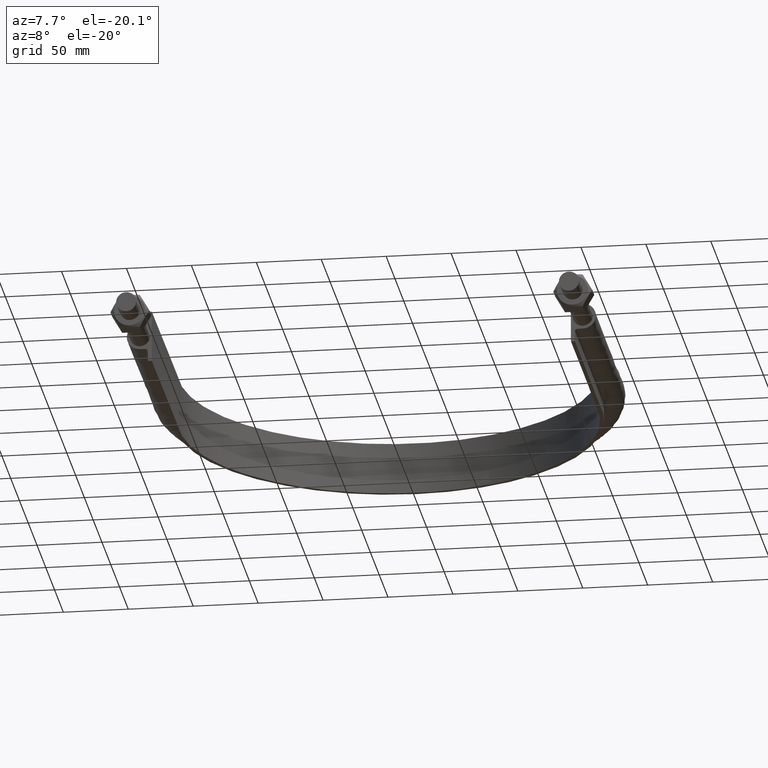
[diagram: clean part render]
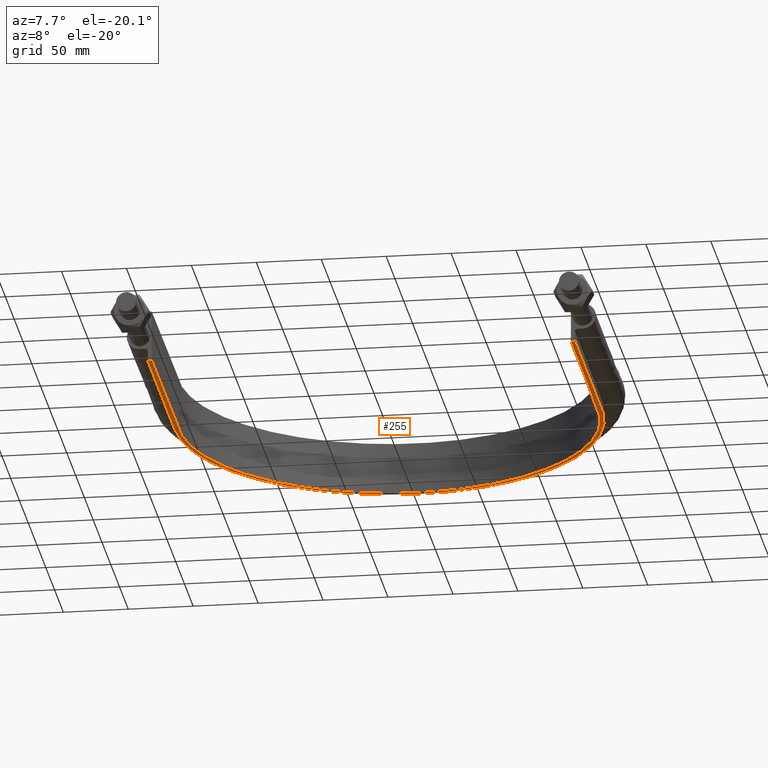
[diagram: same view with one face highlighted and labeled with its STEP entity id]
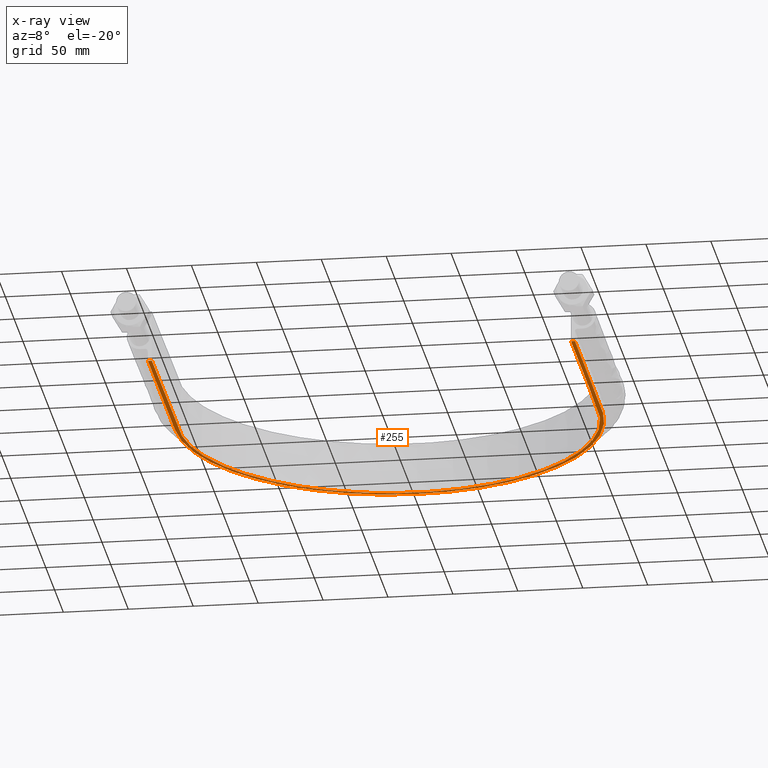
[diagram: x-ray of the same camera — body ghosted, the highlighted face saturated]
A machine part, auxiliary view. The second image highlights one B-rep face of the part: STEP entity #255.
The next image is the same camera in x-ray: the body ghosted, the highlighted face saturated — about 0% of this face is hidden behind the body in this view.
In plain terms, the highlighted planar face has unit normal (0, 0, 1).
Its self-contained STEP definition (entity closure, byte-faithful):
#255 = ADVANCED_FACE( '', ( #351 ), #352, .F. );
#351 = FACE_OUTER_BOUND( '', #1225, .T. );
#352 = PLANE( '', #1226 );
#1225 = EDGE_LOOP( '', ( #1880, #1881, #1882, #1883 ) );
#1226 = AXIS2_PLACEMENT_3D( '', #1884, #1885, #1886 );
#1880 = ORIENTED_EDGE( '', *, *, #1989, .F. );
#1881 = ORIENTED_EDGE( '', *, *, #1979, .F. );
#1882 = ORIENTED_EDGE( '', *, *, #1988, .T. );
#1883 = ORIENTED_EDGE( '', *, *, #1982, .F. );
#1884 = CARTESIAN_POINT( '', ( 200.000000000000, 478.510000000000, -20.0000000000000 ) );
#1885 = DIRECTION( '', ( 0.000000000000000, 0.000000000000000, 1.00000000000000 ) );
#1886 = DIRECTION( '', ( 1.00000000000000, 0.000000000000000, 0.000000000000000 ) );
#1979 = EDGE_CURVE( '', #2097, #2091, #2099, .T. );
#1982 = EDGE_CURVE( '', #2102, #2105, #2106, .T. );
#1988 = EDGE_CURVE( '', #2097, #2105, #2114, .T. );
#1989 = EDGE_CURVE( '', #2091, #2102, #2115, .T. );
#2091 = VERTEX_POINT( '', #2542 );
#2097 = VERTEX_POINT( '', #2581 );
#2099 = LINE( '', #2584, #2585 );
#2102 = VERTEX_POINT( '', #2598 );
#2105 = VERTEX_POINT( '', #2602 );
#2106 = LINE( '', #2603, #2604 );
#2114 = B_SPLINE_CURVE_WITH_KNOTS( '', 3, ( #2764, #2765, #2766, #2767, #2768, #2769, #2770, #2771, #2772, #2773, #2774, #2775, #2776, #2777, #2778, #2779, #2780, #2781, #2782, #2783, #2784, #2785, #2786, #2787, #2788, #2789, #2790, #2791, #2792, #2793, #2794, #2795, #2796, #2797, #2798, #2799, #2800, #2801, #2802, #2803, #2804, #2805, #2806, #2807, #2808, #2809, #2810, #2811, #2812, #2813, #2814, #2815, #2816, #2817, #2818, #2819, #2820, #2821, #2822, #2823, #2824, #2825, #2826, #2827, #2828, #2829, #2830, #2831, #2832, #2833, #2834, #2835, #2836, #2837, #2838, #2839, #2840, #2841, #2842, #2843, #2844, #2845, #2846, #2847, #2848, #2849, #2850, #2851, #2852, #2853, #2854, #2855, #2856, #2857, #2858, #2859, #2860, #2861, #2862, #2863, #2864, #2865, #2866, #2867, #2868, #2869, #2870, #2871, #2872, #2873, #2874, #2875, #2876, #2877, #2878, #2879, #2880, #2881, #2882, #2883, #2884, #2885, #2886, #2887, #2888, #2889, #2890, #2891, #2892, #2893, #2894 ), .UNSPECIFIED., .F., .F., ( 4, 1, 1, 1, 1, 2, 2, 2, 2, 2, 2, 2, 2, 2, 2, 2, 2, 2, 2, 2, 2, 2, 2, 2, 2, 2, 2, 2, 2, 2, 2, 2, 2, 2, 2, 2, 2, 2, 2, 2, 2, 2, 2, 2, 2, 2, 2, 2, 2, 2, 2, 2, 2, 2, 2, 2, 1, 2, 2, 2, 2, 2, 2, 2, 2, 1, 1, 1, 1, 4 ), ( 0.000000000000000, 0.104054729085109, 0.130068411356386, 0.143075252492024, 0.149578673059843, 0.152830383343753, 0.156082093627663, 0.159333803911572, 0.162585514195482, 0.169088934763301, 0.182095775898939, 0.195102617034578, 0.208109458170216, 0.221116299305855, 0.227619719873674, 0.234123140441493, 0.247129981577132, 0.260136822712770, 0.273143663848409, 0.276395374132318, 0.279647084416228, 0.286150504984047, 0.299157346119686, 0.312164187255325, 0.325171028390963, 0.331674448958783, 0.334926159242692, 0.338177869526602, 0.351184710662240, 0.364191551797878, 0.377198392933517, 0.383701813501336, 0.386953523785245, 0.390205234069155, 0.403212075204793, 0.416218916340431, 0.429225757476069, 0.442232598611708, 0.448736019179527, 0.455239439747346, 0.468246280882984, 0.481253122018622, 0.494259963154260, 0.500763383722080, 0.507266804289899, 0.520273645425537, 0.533280486561175, 0.546287327696813, 0.552790748264632, 0.556042458548542, 0.559294168832451, 0.572301009968090, 0.585307851103728, 0.598314692239366, 0.611321533375004, 0.614573243658913, 0.617824953942822, 0.624328374510641, 0.637335215646279, 0.650342056781918, 0.663348897917556, 0.669852318485375, 0.673104028769284, 0.676355739053194, 0.679607449337103, 0.682859159621013, 0.689362580188832, 0.702369421324470, 0.728383103595746, 0.832437832680851 ), .UNSPECIFIED. );
#2115 = B_SPLINE_CURVE_WITH_KNOTS( '', 3, ( #2895, #2896, #2897, #2898, #2899, #2900, #2901, #2902, #2903, #2904, #2905, #2906, #2907, #2908, #2909, #2910, #2911, #2912 ), .UNSPECIFIED., .F., .F., ( 4, 3, 1, 1, 1, 1, 1, 1, 1, 1, 3, 4 ), ( -11.0000000000000, -10.0000000000000, -9.00000000000000, -8.00000000000000, -7.00000000000000, -6.00000000000000, -5.00000000000000, -4.00000000000000, -3.00000000000000, -2.00000000000000, -1.00000000000000, 0.000000000000000 ), .UNSPECIFIED. );
#2542 = CARTESIAN_POINT( '', ( -161.400000000000, 78.5100000000001, -20.0000000000000 ) );
#2581 = CARTESIAN_POINT( '', ( -164.400000000000, 78.5100000000001, -20.0000000000000 ) );
#2584 = CARTESIAN_POINT( '', ( -200.000000000000, 78.5100000000001, -20.0000000000000 ) );
#2585 = VECTOR( '', #3002, 1000.00000000000 );
#2598 = CARTESIAN_POINT( '', ( 161.400000000000, 78.5100000000000, -20.0000000000000 ) );
#2602 = CARTESIAN_POINT( '', ( 164.400000000000, 78.5100000000000, -20.0000000000000 ) );
#2603 = CARTESIAN_POINT( '', ( -200.000000000000, 78.5100000000001, -20.0000000000000 ) );
#2604 = VECTOR( '', #3004, 1000.00000000000 );
#2764 = CARTESIAN_POINT( '', ( -164.400000000000, 78.5100000000001, -20.0000000000000 ) );
#2765 = CARTESIAN_POINT( '', ( -164.400000000000, 113.194956691567, -20.0000000000000 ) );
#2766 = CARTESIAN_POINT( '', ( -164.400000000000, 156.551152556025, -20.0000000000000 ) );
#2767 = CARTESIAN_POINT( '', ( -164.400000000000, 204.242968006929, -20.0000000000000 ) );
#2768 = CARTESIAN_POINT( '', ( -164.400000000000, 219.417636559489, -20.0000000000000 ) );
#2769 = CARTESIAN_POINT( '', ( -164.400000000000, 227.004970835769, -20.0000000000000 ) );
#2770 = CARTESIAN_POINT( '', ( -164.400000000000, 230.256685525604, -20.0000000000000 ) );
#2771 = CARTESIAN_POINT( '', ( -164.400000000000, 232.424495318827, -20.0000000000000 ) );
#2772 = CARTESIAN_POINT( '', ( -164.401112814939, 233.508402047334, -20.0000000000000 ) );
#2773 = CARTESIAN_POINT( '', ( -164.397791436545, 235.676206372964, -20.0000000000000 ) );
#2774 = CARTESIAN_POINT( '', ( -164.389397229221, 236.760097451186, -20.0000000000000 ) );
#2775 = CARTESIAN_POINT( '', ( -164.346347317781, 238.927836376433, -20.0000000000000 ) );
#2776 = CARTESIAN_POINT( '', ( -164.314015247172, 240.011688048583, -20.0000000000000 ) );
#2777 = CARTESIAN_POINT( '', ( -164.184658021981, 243.263189792924, -20.0000000000000 ) );
#2778 = CARTESIAN_POINT( '', ( -164.054986387869, 245.432649531979, -20.0000000000000 ) );
#2779 = CARTESIAN_POINT( '', ( -163.540089866603, 251.903443163605, -20.0000000000000 ) );
#2780 = CARTESIAN_POINT( '', ( -163.028857186242, 256.178647842779, -20.0000000000000 ) );
#2781 = CARTESIAN_POINT( '', ( -161.680784922928, 264.654119101839, -20.0000000000000 ) );
#2782 = CARTESIAN_POINT( '', ( -160.843839994309, 268.854361436527, -20.0000000000000 ) );
#2783 = CARTESIAN_POINT( '', ( -158.845991034651, 277.180287246155, -20.0000000000000 ) );
#2784 = CARTESIAN_POINT( '', ( -157.684954010361, 281.305940112835, -20.0000000000000 ) );
#2785 = CARTESIAN_POINT( '', ( -155.032434907613, 289.481194251213, -20.0000000000000 ) );
#2786 = CARTESIAN_POINT( '', ( -153.540637667280, 293.530722988726, -20.0000000000000 ) );
#2787 = CARTESIAN_POINT( '', ( -151.046446265380, 299.545983905580, -20.0000000000000 ) );
#2788 = CARTESIAN_POINT( '', ( -150.176639375754, 301.530591569497, -20.0000000000000 ) );
#2789 = CARTESIAN_POINT( '', ( -148.365677489265, 305.451034189669, -20.0000000000000 ) );
#2790 = CARTESIAN_POINT( '', ( -147.423966722703, 307.388338955487, -20.0000000000000 ) );
#2791 = CARTESIAN_POINT( '', ( -144.492313373275, 313.132875216607, -20.0000000000000 ) );
#2792 = CARTESIAN_POINT( '', ( -142.395491839973, 316.872502291720, -20.0000000000000 ) );
#2793 = CARTESIAN_POINT( '', ( -137.921089039274, 324.174166757927, -20.0000000000000 ) );
#2794 = CARTESIAN_POINT( '', ( -135.543392362292, 327.736131148697, -20.0000000000000 ) );
#2795 = CARTESIAN_POINT( '', ( -130.504111697186, 334.680491951784, -20.0000000000000 ) );
#2796 = CARTESIAN_POINT( '', ( -127.842299055251, 338.062743733112, -20.0000000000000 ) );
#2797 = CARTESIAN_POINT( '', ( -124.331524748109, 342.174483348527, -20.0000000000000 ) );
#2798 = CARTESIAN_POINT( '', ( -123.620193252739, 342.991026751501, -20.0000000000000 ) );
#2799 = CARTESIAN_POINT( '', ( -122.179027254971, 344.612409802346, -20.0000000000000 ) );
#2800 = CARTESIAN_POINT( '', ( -121.449202472703, 345.417189981230, -20.0000000000000 ) );
#2801 = CARTESIAN_POINT( '', ( -119.241901422658, 347.803147571149, -20.0000000000000 ) );
#2802 = CARTESIAN_POINT( '', ( -117.743364650801, 349.359649553351, -20.0000000000000 ) );
#2803 = CARTESIAN_POINT( '', ( -113.168603753490, 353.929094656280, -20.0000000000000 ) );
#2804 = CARTESIAN_POINT( '', ( -110.013226002105, 356.841973084913, -20.0000000000000 ) );
#2805 = CARTESIAN_POINT( '', ( -103.496070778984, 362.406802862437, -20.0000000000000 ) );
#2806 = CARTESIAN_POINT( '', ( -100.134198242748, 365.058634032376, -20.0000000000000 ) );
#2807 = CARTESIAN_POINT( '', ( -93.2034983802226, 370.100667582664, -20.0000000000000 ) );
#2808 = CARTESIAN_POINT( '', ( -89.6348208454292, 372.491059326921, -20.0000000000000 ) );
#2809 = CARTESIAN_POINT( '', ( -84.1216642835634, 375.874200301252, -20.0000000000000 ) );
#2810 = CARTESIAN_POINT( '', ( -82.2572525184615, 376.968169226843, -20.0000000000000 ) );
#2811 = CARTESIAN_POINT( '', ( -79.4199251738959, 378.557658096214, -20.0000000000000 ) );
#2812 = CARTESIAN_POINT( '', ( -78.4664937879993, 379.079355636748, -20.0000000000000 ) );
#2813 = CARTESIAN_POINT( '', ( -76.5540001382347, 380.101226290093, -20.0000000000000 ) );
#2814 = CARTESIAN_POINT( '', ( -75.5941946256078, 380.601833763864, -20.0000000000000 ) );
#2815 = CARTESIAN_POINT( '', ( -70.7776054635586, 383.053904702583, -20.0000000000000 ) );
#2816 = CARTESIAN_POINT( '', ( -66.8682015972500, 384.852656297692, -20.0000000000000 ) );
#2817 = CARTESIAN_POINT( '', ( -58.9404340251184, 388.133941467268, -20.0000000000000 ) );
#2818 = CARTESIAN_POINT( '', ( -54.9221074398468, 389.616582771218, -20.0000000000000 ) );
#2819 = CARTESIAN_POINT( '', ( -46.7771352731453, 392.267507183329, -20.0000000000000 ) );
#2820 = CARTESIAN_POINT( '', ( -42.6507752742801, 393.436619095513, -20.0000000000000 ) );
#2821 = CARTESIAN_POINT( '', ( -36.3779362801172, 394.948540612920, -20.0000000000000 ) );
#2822 = CARTESIAN_POINT( '', ( -34.2731054845749, 395.412219626070, -20.0000000000000 ) );
#2823 = CARTESIAN_POINT( '', ( -31.0947095102859, 396.046358265767, -20.0000000000000 ) );
#2824 = CARTESIAN_POINT( '', ( -30.0317191361202, 396.247507583014, -20.0000000000000 ) );
#2825 = CARTESIAN_POINT( '', ( -27.8986333936867, 396.629186444373, -20.0000000000000 ) );
#2826 = CARTESIAN_POINT( '', ( -26.8273434139405, 396.809901238471, -20.0000000000000 ) );
#2827 = CARTESIAN_POINT( '', ( -21.4696015124229, 397.658929575962, -20.0000000000000 ) );
#2828 = CARTESIAN_POINT( '', ( -17.1843900397952, 398.163087914422, -20.0000000000000 ) );
#2829 = CARTESIAN_POINT( '', ( -8.61585586475161, 398.834704046003, -20.0000000000000 ) );
#2830 = CARTESIAN_POINT( '', ( -4.33253349701642, 399.002102177490, -20.0000000000000 ) );
#2831 = CARTESIAN_POINT( '', ( 4.23224776210403, 399.004706890969, -20.0000000000000 ) );
#2832 = CARTESIAN_POINT( '', ( 8.51370656733653, 398.839898114999, -20.0000000000000 ) );
#2833 = CARTESIAN_POINT( '', ( 17.0747401534004, 398.174426027000, -20.0000000000000 ) );
#2834 = CARTESIAN_POINT( '', ( 21.3543151187244, 397.673795603419, -20.0000000000000 ) );
#2835 = CARTESIAN_POINT( '', ( 27.7722131616445, 396.661798633603, -20.0000000000000 ) );
#2836 = CARTESIAN_POINT( '', ( 29.9140086384693, 396.280063374135, -20.0000000000000 ) );
#2837 = CARTESIAN_POINT( '', ( 34.1597071945996, 395.435755209704, -20.0000000000000 ) );
#2838 = CARTESIAN_POINT( '', ( 36.2679191606630, 394.972624095615, -20.0000000000000 ) );
#2839 = CARTESIAN_POINT( '', ( 42.5495878486301, 393.462944409612, -20.0000000000000 ) );
#2840 = CARTESIAN_POINT( '', ( 46.6801348271520, 392.296270371901, -20.0000000000000 ) );
#2841 = CARTESIAN_POINT( '', ( 54.8292840046250, 389.649533827340, -20.0000000000000 ) );
#2842 = CARTESIAN_POINT( '', ( 58.8478709900279, 388.169428730290, -20.0000000000000 ) );
#2843 = CARTESIAN_POINT( '', ( 66.7727743121277, 384.894917799148, -20.0000000000000 ) );
#2844 = CARTESIAN_POINT( '', ( 70.6791112233445, 383.100569563253, -20.0000000000000 ) );
#2845 = CARTESIAN_POINT( '', ( 76.4520718313788, 380.166765884871, -20.0000000000000 ) );
#2846 = CARTESIAN_POINT( '', ( 78.3619473175706, 379.148393463064, -20.0000000000000 ) );
#2847 = CARTESIAN_POINT( '', ( 82.1521398445274, 377.028900000014, -20.0000000000000 ) );
#2848 = CARTESIAN_POINT( '', ( 84.0218361506230, 375.933662305823, -20.0000000000000 ) );
#2849 = CARTESIAN_POINT( '', ( 89.5459979753098, 372.549008376609, -20.0000000000000 ) );
#2850 = CARTESIAN_POINT( '', ( 93.1199772103805, 370.158194645049, -20.0000000000000 ) );
#2851 = CARTESIAN_POINT( '', ( 100.057978294405, 365.117239771998, -20.0000000000000 ) );
#2852 = CARTESIAN_POINT( '', ( 103.421801536321, 362.466853322403, -20.0000000000000 ) );
#2853 = CARTESIAN_POINT( '', ( 109.940193148711, 356.907620719414, -20.0000000000000 ) );
#2854 = CARTESIAN_POINT( '', ( 113.094804278788, 353.998827380248, -20.0000000000000 ) );
#2855 = CARTESIAN_POINT( '', ( 117.666768975037, 349.438073768968, -20.0000000000000 ) );
#2856 = CARTESIAN_POINT( '', ( 119.164117876877, 347.884919181135, -20.0000000000000 ) );
#2857 = CARTESIAN_POINT( '', ( 121.369267704192, 345.504702647791, -20.0000000000000 ) );
#2858 = CARTESIAN_POINT( '', ( 122.097504670186, 344.702882136052, -20.0000000000000 ) );
#2859 = CARTESIAN_POINT( '', ( 123.540195090082, 343.082216503168, -20.0000000000000 ) );
#2860 = CARTESIAN_POINT( '', ( 124.254377380736, 342.263630681837, -20.0000000000000 ) );
#2861 = CARTESIAN_POINT( '', ( 127.774789921492, 338.146514758157, -20.0000000000000 ) );
#2862 = CARTESIAN_POINT( '', ( 130.442435347835, 334.761097001742, -20.0000000000000 ) );
#2863 = CARTESIAN_POINT( '', ( 135.490619375253, 327.813142423085, -20.0000000000000 ) );
#2864 = CARTESIAN_POINT( '', ( 137.871345881558, 324.250721521455, -20.0000000000000 ) );
#2865 = CARTESIAN_POINT( '', ( 142.349926805875, 316.951373103872, -20.0000000000000 ) );
#2866 = CARTESIAN_POINT( '', ( 144.447832885233, 313.214477458319, -20.0000000000000 ) );
#2867 = CARTESIAN_POINT( '', ( 148.357643246087, 305.564248803822, -20.0000000000000 ) );
#2868 = CARTESIAN_POINT( '', ( 150.170208090249, 301.651323302579, -20.0000000000000 ) );
#2869 = CARTESIAN_POINT( '', ( 152.249962193093, 296.645450810821, -20.0000000000000 ) );
#2870 = CARTESIAN_POINT( '', ( 152.656898188072, 295.637746950870, -20.0000000000000 ) );
#2871 = CARTESIAN_POINT( '', ( 153.448598221972, 293.619489616335, -20.0000000000000 ) );
#2872 = CARTESIAN_POINT( '', ( 154.604082453027, 290.585090430418, -20.0000000000000 ) );
#2873 = CARTESIAN_POINT( '', ( 155.664224929574, 287.529838845205, -20.0000000000000 ) );
#2874 = CARTESIAN_POINT( '', ( 157.659619292075, 281.392020586264, -20.0000000000000 ) );
#2875 = CARTESIAN_POINT( '', ( 158.823627411517, 277.263779806066, -20.0000000000000 ) );
#2876 = CARTESIAN_POINT( '', ( 160.826483259109, 268.936181720183, -20.0000000000000 ) );
#2877 = CARTESIAN_POINT( '', ( 161.665372921474, 264.736833586018, -20.0000000000000 ) );
#2878 = CARTESIAN_POINT( '', ( 163.017050638178, 256.266814936670, -20.0000000000000 ) );
#2879 = CARTESIAN_POINT( '', ( 163.530043425187, 251.996189199008, -20.0000000000000 ) );
#2880 = CARTESIAN_POINT( '', ( 164.048104978438, 245.535260317739, -20.0000000000000 ) );
#2881 = CARTESIAN_POINT( '', ( 164.178967102381, 243.370129820411, -20.0000000000000 ) );
#2882 = CARTESIAN_POINT( '', ( 164.310513690544, 240.116451581558, -20.0000000000000 ) );
#2883 = CARTESIAN_POINT( '', ( 164.343561000334, 239.031880269034, -20.0000000000000 ) );
#2884 = CARTESIAN_POINT( '', ( 164.388013795319, 236.862713802183, -20.0000000000000 ) );
#2885 = CARTESIAN_POINT( '', ( 164.397282425713, 235.778116293781, -20.0000000000000 ) );
#2886 = CARTESIAN_POINT( '', ( 164.401463363768, 233.608905461279, -20.0000000000000 ) );
#2887 = CARTESIAN_POINT( '', ( 164.400000000000, 232.524296129933, -20.0000000000000 ) );
#2888 = CARTESIAN_POINT( '', ( 164.400000000000, 230.355080691483, -20.0000000000000 ) );
#2889 = CARTESIAN_POINT( '', ( 164.400000000000, 227.101257533809, -20.0000000000000 ) );
#2890 = CARTESIAN_POINT( '', ( 164.400000000000, 219.509003499234, -20.0000000000000 ) );
#2891 = CARTESIAN_POINT( '', ( 164.400000000000, 204.324495430086, -20.0000000000000 ) );
#2892 = CARTESIAN_POINT( '', ( 164.400000000000, 156.601755784191, -20.0000000000000 ) );
#2893 = CARTESIAN_POINT( '', ( 164.400000000000, 113.217447015197, -20.0000000000000 ) );
#2894 = CARTESIAN_POINT( '', ( 164.400000000000, 78.5099999999996, -20.0000000000000 ) );
#2895 = CARTESIAN_POINT( '', ( -161.400000000000, 78.5100000000001, -20.0000000000000 ) );
#2896 = CARTESIAN_POINT( '', ( -161.400000000000, 130.543333333333, -20.0000000000000 ) );
#2897 = CARTESIAN_POINT( '', ( -161.400000000000, 182.576666666667, -20.0000000000000 ) );
#2898 = CARTESIAN_POINT( '', ( -161.400000000000, 234.610000000000, -20.0000000000000 ) );
#2899 = CARTESIAN_POINT( '', ( -161.400000000000, 253.377198593415, -20.0000000000000 ) );
#2900 = CARTESIAN_POINT( '', ( -154.777803559236, 290.949605256109, -20.0000000000000 ) );
#2901 = CARTESIAN_POINT( '', ( -126.176021511748, 340.482890510073, -20.0000000000000 ) );
#2902 = CARTESIAN_POINT( '', ( -82.3555491101910, 377.254353924046, -20.0000000000000 ) );
#2903 = CARTESIAN_POINT( '', ( -28.6017820474880, 396.818694818595, -20.0000000000000 ) );
#2904 = CARTESIAN_POINT( '', ( 28.6017820474882, 396.818694818595, -20.0000000000000 ) );
#2905 = CARTESIAN_POINT( '', ( 82.3555491101912, 377.254353924046, -20.0000000000000 ) );
#2906 = CARTESIAN_POINT( '', ( 126.176021511748, 340.482890510073, -20.0000000000000 ) );
#2907 = CARTESIAN_POINT( '', ( 154.777803559236, 290.949605256109, -20.0000000000000 ) );
#2908 = CARTESIAN_POINT( '', ( 161.400000000000, 253.377198593415, -20.0000000000000 ) );
#2909 = CARTESIAN_POINT( '', ( 161.400000000000, 234.610000000000, -20.0000000000000 ) );
#2910 = CARTESIAN_POINT( '', ( 161.400000000000, 182.576666666667, -20.0000000000000 ) );
#2911 = CARTESIAN_POINT( '', ( 161.400000000000, 130.543333333333, -20.0000000000000 ) );
#2912 = CARTESIAN_POINT( '', ( 161.400000000000, 78.5100000000000, -20.0000000000000 ) );
#3002 = DIRECTION( '', ( 1.00000000000000, -2.75411799042744E-080, 0.000000000000000 ) );
#3004 = DIRECTION( '', ( 1.00000000000000, -2.75411799042744E-080, 0.000000000000000 ) );